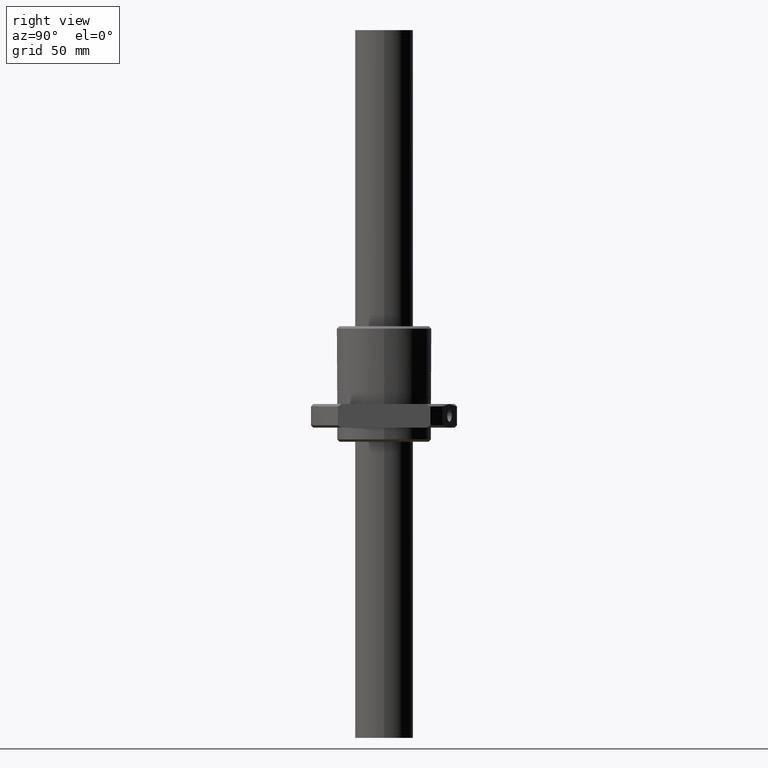
[diagram: clean part render]
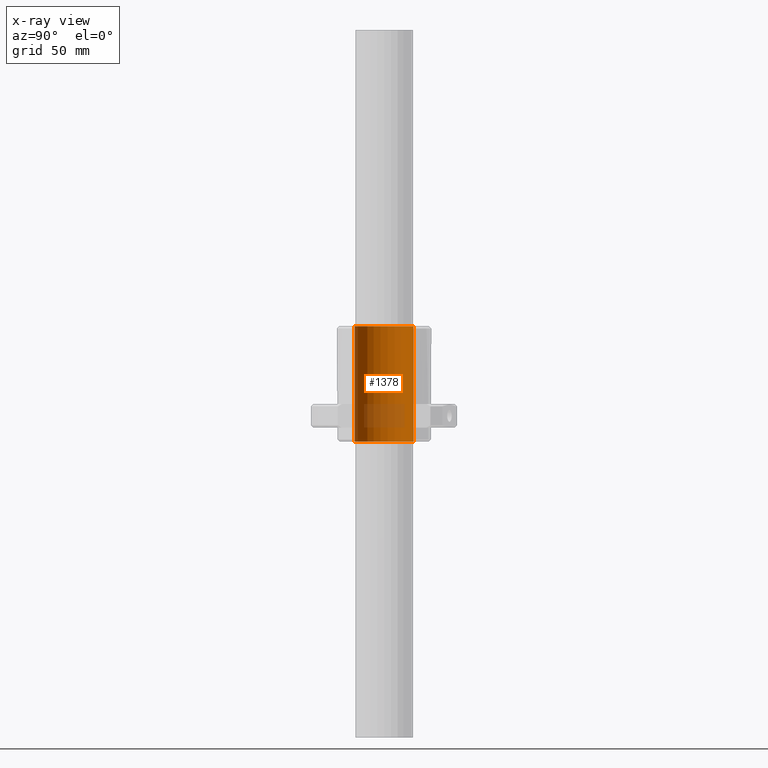
[diagram: x-ray — body ghosted, one internal face saturated and labeled with its STEP entity id]
A machine part, right view, then the same camera in x-ray: the body is ghosted and one INTERNAL B-rep face — a face not visible from any outside direction — is saturated and labeled: STEP entity #1378.
In plain terms, the highlighted cylindrical surface (edge-blend (fillet) strip) has radius 12.5 mm, axis along (0, -0, -1).
Its self-contained STEP definition (entity closure, byte-faithful):
#134 = DIRECTION ( 'NONE',  ( 0.0000000000000000000, -1.000000000000000000, -5.551115123125782700E-016 ) ) ;
#136 = DIRECTION ( 'NONE',  ( 0.0000000000000000000, -2.775557561562891400E-016, 1.000000000000000000 ) ) ;
#137 = CARTESIAN_POINT ( 'NONE',  ( 0.0000000000000000000, 0.0000000000000000000, -49.00000030000000400 ) ) ;
#147 = DIRECTION ( 'NONE',  ( 0.0000000000000000000, -2.775557561562891400E-016, 1.000000000000000000 ) ) ;
#189 = CARTESIAN_POINT ( 'NONE',  ( 0.0000000000000000000, -12.50000000000000000, -49.00000030000001100 ) ) ;
#225 = LINE ( 'NONE', #189, #255 ) ;
#249 = VERTEX_POINT ( 'NONE', #466 ) ;
#255 = VECTOR ( 'NONE', #147, 1000.000000000000000 ) ;
#269 = VERTEX_POINT ( 'NONE', #464 ) ;
#312 = EDGE_CURVE ( 'NONE', #758, #1653, #225, .T. ) ;
#327 = AXIS2_PLACEMENT_3D ( 'NONE', #425, #419, #417 ) ;
#364 = DIRECTION ( 'NONE',  ( 0.0000000000000000000, -1.000000000000000000, -2.775557561562891400E-016 ) ) ;
#365 = DIRECTION ( 'NONE',  ( 0.0000000000000000000, -2.775557561562891400E-016, 1.000000000000000000 ) ) ;
#374 = CARTESIAN_POINT ( 'NONE',  ( 0.0000000000000000000, -1.360023213492489600E-014, 0.0000000000000000000 ) ) ;
#417 = DIRECTION ( 'NONE',  ( 0.0000000000000000000, -1.000000000000000000, -5.551115123125782700E-016 ) ) ;
#419 = DIRECTION ( 'NONE',  ( -0.0000000000000000000, 2.775557561562891400E-016, -1.000000000000000000 ) ) ;
#425 = CARTESIAN_POINT ( 'NONE',  ( 0.0000000000000000000, -3.950148346741631000E-040, -49.00000030000000400 ) ) ;
#436 = ORIENTED_EDGE ( 'NONE', *, *, #1196, .T. ) ;
#464 = CARTESIAN_POINT ( 'NONE',  ( 1.530808498934192500E-015, 12.50000000000000200, -49.00000030000000400 ) ) ;
#466 = CARTESIAN_POINT ( 'NONE',  ( 1.530808498934191500E-015, 12.49999999999998800, 3.469446951953614200E-015 ) ) ;
#661 = ORIENTED_EDGE ( 'NONE', *, *, #312, .T. ) ;
#758 = VERTEX_POINT ( 'NONE', #980 ) ;
#800 = AXIS2_PLACEMENT_3D ( 'NONE', #137, #136, #134 ) ;
#872 = ORIENTED_EDGE ( 'NONE', *, *, #1164, .T. ) ;
#882 = VECTOR ( 'NONE', #1817, 1000.000000000000000 ) ;
#980 = CARTESIAN_POINT ( 'NONE',  ( 0.0000000000000000000, -12.50000000000000000, -49.00000030000001100 ) ) ;
#1056 = FACE_OUTER_BOUND ( 'NONE', #1236, .T. ) ;
#1076 = ORIENTED_EDGE ( 'NONE', *, *, #1509, .F. ) ;
#1164 = EDGE_CURVE ( 'NONE', #269, #758, #1726, .T. ) ;
#1196 = EDGE_CURVE ( 'NONE', #1653, #249, #1750, .T. ) ;
#1236 = EDGE_LOOP ( 'NONE', ( #1076, #872, #661, #436 ) ) ;
#1302 = CYLINDRICAL_SURFACE ( 'NONE', #800, 12.50000000000000000 ) ;
#1356 = AXIS2_PLACEMENT_3D ( 'NONE', #374, #365, #364 ) ;
#1378 = ADVANCED_FACE ( 'NONE', ( #1056 ), #1302, .F. ) ;
#1509 = EDGE_CURVE ( 'NONE', #269, #249, #1823, .T. ) ;
#1653 = VERTEX_POINT ( 'NONE', #1703 ) ;
#1703 = CARTESIAN_POINT ( 'NONE',  ( 0.0000000000000000000, -12.50000000000001400, -3.469446951953614200E-015 ) ) ;
#1726 = CIRCLE ( 'NONE', #327, 12.50000000000000000 ) ;
#1750 = CIRCLE ( 'NONE', #1356, 12.50000000000000000 ) ;
#1817 = DIRECTION ( 'NONE',  ( 0.0000000000000000000, -2.775557561562891400E-016, 1.000000000000000000 ) ) ;
#1820 = CARTESIAN_POINT ( 'NONE',  ( 1.530808498934191500E-015, 12.50000000000000000, -49.00000029999999600 ) ) ;
#1823 = LINE ( 'NONE', #1820, #882 ) ;